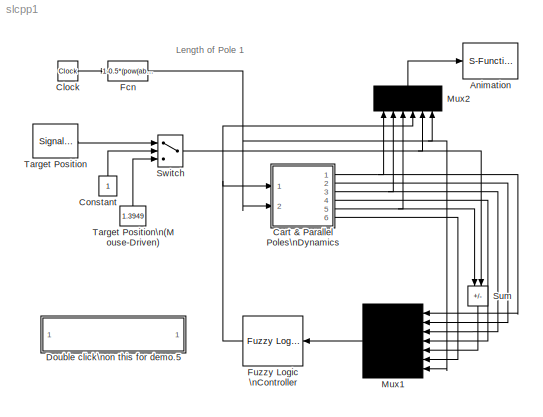
MODEL slcpp1
KIND model
CONFIG AbsTol = 1e-6
CONFIG FixedStep = auto
CONFIG MaxStep = 0.1
CONFIG MinStep = auto
CONFIG PreLoadFcn = initcpp1
CONFIG RelTol = 1e-5
CONFIG Solver = ode45
CONFIG SolverMode = SingleTasking
CONFIG StartTime = 0.0
CONFIG StopTime = 250
BLOCK [S-Function] Animation
  FunctionName = animcpp1
  PortCounts = []
  Ports = [1]
  SFunctionModules = ''
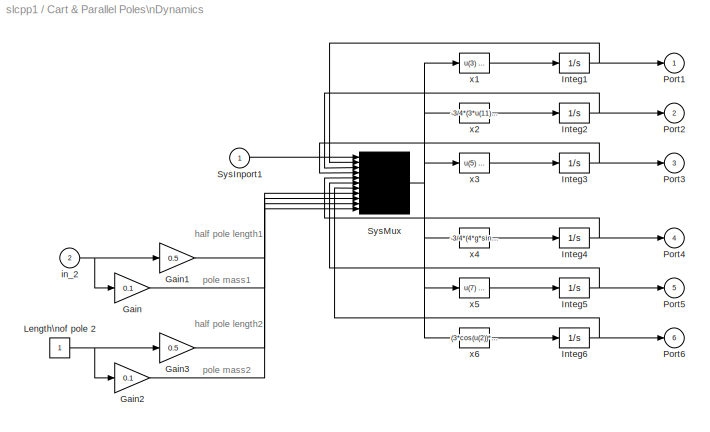
BLOCK [SubSystem] Cart & Parallel Poles\nDynamics
  MaskCallbackString = |
  MaskDescription = Inverted Pendulum (cart & two poles)
  MaskDisplay = plot(-4,-1,4,6,[0 3 2.8 -0.2 0]+0.5,[1 5 5.15 1.15 1],[0 0.2 -0.5 -0.7 0]-0.5, [1 1.2 2.7 2.5 1],[-1 -1 1 1 -1],[1 0 0 1 1],[-3.5 3.5],[0 0])
  MaskEnableString = on,on
  MaskIconFrame = on
  MaskIconOpaque = on
  MaskIconRotate = none
  MaskIconUnits = autoscale
  MaskInitialization = init_cond = @1; specs = @2;M=specs(1);g=specs(2);
  MaskPromptString = Initial Conditions (a1, av1, a2, av2, x, v):|Physical Specifications (M, g):
  MaskStyleString = edit,edit
  MaskToolTipString = on,on
  MaskTunableValueString = on,on
  MaskType = Differential Equation Editor (DEE)
  MaskValueString = [-0.07 0 0.1 0 0 0]|[1.0, 9.8]
  MaskVisibilityString = on,on
  Ports = [2, 6]
  RTWFcnNameOpts = Auto
  RTWFileNameOpts = Auto
  RTWSystemCode = Auto
  ShowPortLabels = off
  TreatAsAtomicUnit = off
BLOCK [Gain] Cart & Parallel Poles\nDynamics/Gain
  Gain = 0.1
  Multiplication = Element-wise(K.*u)
  SaturateOnIntegerOverflow = on
BLOCK [Gain] Cart & Parallel Poles\nDynamics/Gain1
  Gain = 0.5
  Multiplication = Element-wise(K.*u)
  SaturateOnIntegerOverflow = on
BLOCK [Gain] Cart & Parallel Poles\nDynamics/Gain2
  Gain = 0.1
  Multiplication = Element-wise(K.*u)
  SaturateOnIntegerOverflow = on
BLOCK [Gain] Cart & Parallel Poles\nDynamics/Gain3
  Gain = 0.5
  Multiplication = Element-wise(K.*u)
  SaturateOnIntegerOverflow = on
BLOCK [Integrator] Cart & Parallel Poles\nDynamics/Integ1
  AbsoluteTolerance = auto
  ExternalReset = none
  InitialCondition = init_cond(1)
  InitialConditionSource = internal
  LimitOutput = off
  LowerSaturationLimit = -inf
  Ports = [1, 1]
  ShowSaturationPort = off
  ShowStatePort = off
  UpperSaturationLimit = inf
BLOCK [Integrator] Cart & Parallel Poles\nDynamics/Integ2
  AbsoluteTolerance = auto
  ExternalReset = none
  InitialCondition = init_cond(2)
  InitialConditionSource = internal
  LimitOutput = off
  LowerSaturationLimit = -inf
  Ports = [1, 1]
  ShowSaturationPort = off
  ShowStatePort = off
  UpperSaturationLimit = inf
BLOCK [Integrator] Cart & Parallel Poles\nDynamics/Integ3
  AbsoluteTolerance = auto
  ExternalReset = none
  InitialCondition = init_cond(3)
  InitialConditionSource = internal
  LimitOutput = off
  LowerSaturationLimit = -inf
  Ports = [1, 1]
  ShowSaturationPort = off
  ShowStatePort = off
  UpperSaturationLimit = inf
BLOCK [Integrator] Cart & Parallel Poles\nDynamics/Integ4
  AbsoluteTolerance = auto
  ExternalReset = none
  InitialCondition = init_cond(4)
  InitialConditionSource = internal
  LimitOutput = off
  LowerSaturationLimit = -inf
  Ports = [1, 1]
  ShowSaturationPort = off
  ShowStatePort = off
  UpperSaturationLimit = inf
BLOCK [Integrator] Cart & Parallel Poles\nDynamics/Integ5
  AbsoluteTolerance = auto
  ExternalReset = none
  InitialCondition = init_cond(5)
  InitialConditionSource = internal
  LimitOutput = off
  LowerSaturationLimit = -inf
  Ports = [1, 1]
  ShowSaturationPort = off
  ShowStatePort = off
  UpperSaturationLimit = inf
BLOCK [Integrator] Cart & Parallel Poles\nDynamics/Integ6
  AbsoluteTolerance = auto
  ExternalReset = none
  InitialCondition = init_cond(6)
  InitialConditionSource = internal
  LimitOutput = off
  LowerSaturationLimit = -inf
  Ports = [1, 1]
  ShowSaturationPort = off
  ShowStatePort = off
  UpperSaturationLimit = inf
BLOCK [Constant] Cart & Parallel Poles\nDynamics/Length\nof pole 2
  Value = 1
  VectorParams1D = on
BLOCK [Outport] Cart & Parallel Poles\nDynamics/Port1
  InitialOutput = 0
  OutputWhenDisabled = held
  Port = 1
BLOCK [Outport] Cart & Parallel Poles\nDynamics/Port2
  InitialOutput = 0
  OutputWhenDisabled = held
  Port = 2
BLOCK [Outport] Cart & Parallel Poles\nDynamics/Port3
  InitialOutput = 0
  OutputWhenDisabled = held
  Port = 3
BLOCK [Outport] Cart & Parallel Poles\nDynamics/Port4
  InitialOutput = 0
  OutputWhenDisabled = held
  Port = 4
BLOCK [Outport] Cart & Parallel Poles\nDynamics/Port5
  InitialOutput = 0
  OutputWhenDisabled = held
  Port = 5
BLOCK [Outport] Cart & Parallel Poles\nDynamics/Port6
  InitialOutput = 0
  OutputWhenDisabled = held
  Port = 6
BLOCK [Inport] Cart & Parallel Poles\nDynamics/SysInport1
  Interpolate = on
  Port = 1
BLOCK [Mux] Cart & Parallel Poles\nDynamics/SysMux
  DisplayOption = none
  Inputs = 11
  Ports = [11, 1]
BLOCK [Inport] Cart & Parallel Poles\nDynamics/in_2
  Interpolate = on
  Port = 2
BLOCK [Fcn] Cart & Parallel Poles\nDynamics/x1
  Expr = u(3)
BLOCK [Fcn] Cart & Parallel Poles\nDynamics/x2
  Expr = -3/4*(3*u(11)*cos(u(4))*g*sin(u(4))*cos(u(2))-4*u(11)*u(10)*sin(u(4))*u(5)^2*cos(u(2))+4*sin(u(2))*g*M+4*sin(u(2))*g*u(9)+4*sin(u(2))*g*u(11)-3*sin(u(2))*g*u(11)*cos(u(4))^2-4*u(1)*cos(u(2))-4*u(9)*u(8)*sin(u(2))*u(3)^2*cos(u(2)))/u(8)/(3*u(11)*cos(u(4))^2-4*u(9)-4*u(11)-4*M+3*u(9)*cos(u(2))^2)
BLOCK [Fcn] Cart & Parallel Poles\nDynamics/x3
  Expr = u(5)
BLOCK [Fcn] Cart & Parallel Poles\nDynamics/x4
  Expr = -3/4*(4*g*sin(u(4))*u(9)+4*g*sin(u(4))*u(11)-4*u(11)*u(10)*sin(u(4))*u(5)^2*cos(u(4))+4*g*sin(u(4))*M-3*g*sin(u(4))*u(9)*cos(u(2))^2+3*cos(u(4))*cos(u(2))*sin(u(2))*g*u(9)-4*cos(u(4))*u(1)-4*cos(u(4))*u(9)*u(8)*sin(u(2))*u(3)^2)/u(10)/(3*u(11)*cos(u(4))^2-4*u(9)-4*u(11)-4*M+3*u(9)*cos(u(2))^2)
BLOCK [Fcn] Cart & Parallel Poles\nDynamics/x5
  Expr = u(7)
BLOCK [Fcn] Cart & Parallel Poles\nDynamics/x6
  Expr = (3*cos(u(2))*sin(u(2))*g*u(9)+3*u(11)*cos(u(4))*g*sin(u(4))-4*u(1)-4*u(9)*u(8)*sin(u(2))*u(3)^2-4*u(11)*u(10)*sin(u(4))*u(5)^2)/(3*u(11)*cos(u(4))^2-4*u(9)-4*u(11)-4*M+3*u(9)*cos(u(2))^2)
BLOCK [Clock] Clock
  Decimation = 10
  DisplayTime = off
BLOCK [Constant] Constant
  MaskIconFrame = on
  MaskIconOpaque = on
  MaskIconRotate = none
  MaskIconUnits = autoscale
  Value = 1
  VectorParams1D = on
BLOCK [SubSystem] Double click\non this for demo.5
  MaskDisplay = disp('Variable Initialization')
  MaskIconFrame = on
  MaskIconOpaque = on
  MaskIconRotate = none
  MaskIconUnits = autoscale
  OpenFcn = initcpp1
  Ports = []
  RTWFcnNameOpts = Auto
  RTWFileNameOpts = Auto
  RTWSystemCode = Auto
  ShowPortLabels = off
  TreatAsAtomicUnit = off
BLOCK [Fcn] Fcn
  Expr = 1-0.5*(pow(abs(cos(2*u[1])),0.3)*sgn(cos(2*u[1])))
BLOCK [Reference] Fuzzy Logic \nController  REF=fuzblock/Fuzzy Logic \nController  (lib defined in mdl_858b3b3e7478)
  Ports = [1, 1]
  SourceBlock = fuzblock/Fuzzy Logic \nController
  SourceType = FIS
  fis = fismat
BLOCK [Mux] Mux1
  DisplayOption = none
  Inputs = 7
  MaskIconFrame = on
  MaskIconOpaque = on
  MaskIconRotate = none
  MaskIconUnits = autoscale
  Ports = [7, 1]
BLOCK [Mux] Mux2
  DisplayOption = none
  Inputs = 6
  MaskIconFrame = on
  MaskIconOpaque = on
  MaskIconRotate = none
  MaskIconUnits = autoscale
  Ports = [6, 1]
BLOCK [Sum] Sum
  IconShape = rectangular
  Inputs = +-
  MaskIconFrame = on
  MaskIconOpaque = on
  MaskIconRotate = none
  MaskIconUnits = autoscale
  Ports = [2, 1]
  SaturateOnIntegerOverflow = on
BLOCK [Switch] Switch
  Threshold = 0
BLOCK [SignalGenerator] Target Position
  Amplitude = 1.500000
  Frequency = 0.350000
  Units = rad/sec
  VectorParams1D = on
  WaveForm = sine
BLOCK [Constant] Target Position\n(Mouse-Driven)
  MaskIconFrame = on
  MaskIconOpaque = on
  MaskIconRotate = none
  MaskIconUnits = autoscale
  Value = 1.3949
  VectorParams1D = on
LINE Cart & Parallel Poles\nDynamics/Gain1:1 -> Cart & Parallel Poles\nDynamics/SysMux:8
LINE Cart & Parallel Poles\nDynamics/Gain2:1 -> Cart & Parallel Poles\nDynamics/SysMux:11
LINE Cart & Parallel Poles\nDynamics/Gain3:1 -> Cart & Parallel Poles\nDynamics/SysMux:10
LINE Cart & Parallel Poles\nDynamics/Gain:1 -> Cart & Parallel Poles\nDynamics/SysMux:9
NET Cart & Parallel Poles\nDynamics/Integ1:1 -> Cart & Parallel Poles\nDynamics/Port1:1, Cart & Parallel Poles\nDynamics/SysMux:2
NET Cart & Parallel Poles\nDynamics/Integ2:1 -> Cart & Parallel Poles\nDynamics/Port2:1, Cart & Parallel Poles\nDynamics/SysMux:3
NET Cart & Parallel Poles\nDynamics/Integ3:1 -> Cart & Parallel Poles\nDynamics/Port3:1, Cart & Parallel Poles\nDynamics/SysMux:4
NET Cart & Parallel Poles\nDynamics/Integ4:1 -> Cart & Parallel Poles\nDynamics/Port4:1, Cart & Parallel Poles\nDynamics/SysMux:5
NET Cart & Parallel Poles\nDynamics/Integ5:1 -> Cart & Parallel Poles\nDynamics/Port5:1, Cart & Parallel Poles\nDynamics/SysMux:6
NET Cart & Parallel Poles\nDynamics/Integ6:1 -> Cart & Parallel Poles\nDynamics/Port6:1, Cart & Parallel Poles\nDynamics/SysMux:7
NET Cart & Parallel Poles\nDynamics/Length\nof pole 2:1 -> Cart & Parallel Poles\nDynamics/Gain2:1, Cart & Parallel Poles\nDynamics/Gain3:1
LINE Cart & Parallel Poles\nDynamics/SysInport1:1 -> Cart & Parallel Poles\nDynamics/SysMux:1
NET Cart & Parallel Poles\nDynamics/SysMux:1 -> Cart & Parallel Poles\nDynamics/x1:1, Cart & Parallel Poles\nDynamics/x2:1, Cart & Parallel Poles\nDynamics/x3:1, Cart & Parallel Poles\nDynamics/x4:1, Cart & Parallel Poles\nDynamics/x5:1, Cart & Parallel Poles\nDynamics/x6:1
NET Cart & Parallel Poles\nDynamics/in_2:1 -> Cart & Parallel Poles\nDynamics/Gain1:1, Cart & Parallel Poles\nDynamics/Gain:1
LINE Cart & Parallel Poles\nDynamics/x1:1 -> Cart & Parallel Poles\nDynamics/Integ1:1
LINE Cart & Parallel Poles\nDynamics/x2:1 -> Cart & Parallel Poles\nDynamics/Integ2:1
LINE Cart & Parallel Poles\nDynamics/x3:1 -> Cart & Parallel Poles\nDynamics/Integ3:1
LINE Cart & Parallel Poles\nDynamics/x4:1 -> Cart & Parallel Poles\nDynamics/Integ4:1
LINE Cart & Parallel Poles\nDynamics/x5:1 -> Cart & Parallel Poles\nDynamics/Integ5:1
LINE Cart & Parallel Poles\nDynamics/x6:1 -> Cart & Parallel Poles\nDynamics/Integ6:1
NET Cart & Parallel Poles\nDynamics:1 -> Mux1:1, Mux2:1
LINE Cart & Parallel Poles\nDynamics:2 -> Mux1:2
NET Cart & Parallel Poles\nDynamics:3 -> Mux1:3, Mux2:2
LINE Cart & Parallel Poles\nDynamics:4 -> Mux1:4
NET Cart & Parallel Poles\nDynamics:5 -> Mux2:3, Sum:1
LINE Cart & Parallel Poles\nDynamics:6 -> Mux1:6
LINE Clock:1 -> Fcn:1
LINE Constant:1 -> Switch:2
NET Fcn:1 -> Cart & Parallel Poles\nDynamics:2, Mux1:7, Mux2:6
NET Fuzzy Logic \nController:1 -> Cart & Parallel Poles\nDynamics:1, Mux2:4
LINE Mux1:1 -> Fuzzy Logic \nController:1
LINE Mux2:1 -> Animation:1
LINE Sum:1 -> Mux1:5
NET Switch:1 -> Mux2:5, Sum:2
LINE Target Position:1 -> Switch:1
LINE Target Position\n(Mouse-Driven):1 -> Switch:3
note: NET lines group one-source signal fan-out (src -> all destinations, sorted); 1:1 wires keep LINE
